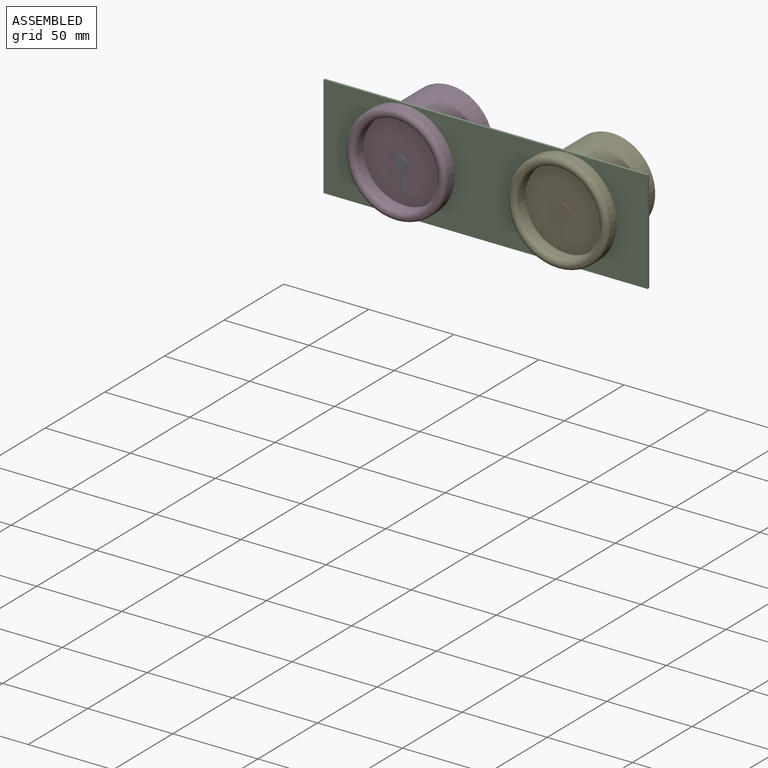
[diagram: assembled view]
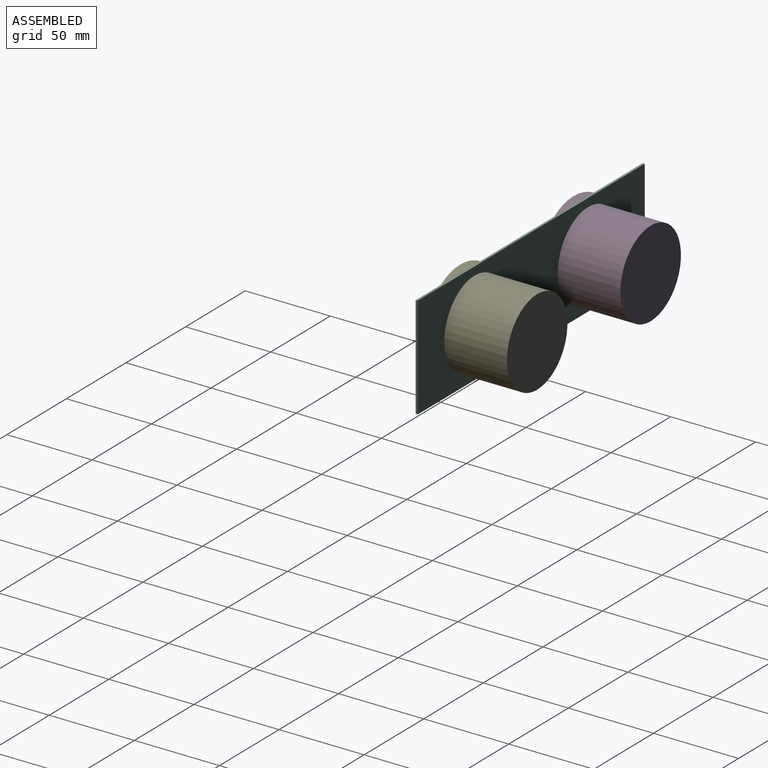
[diagram: assembled view, second angle]
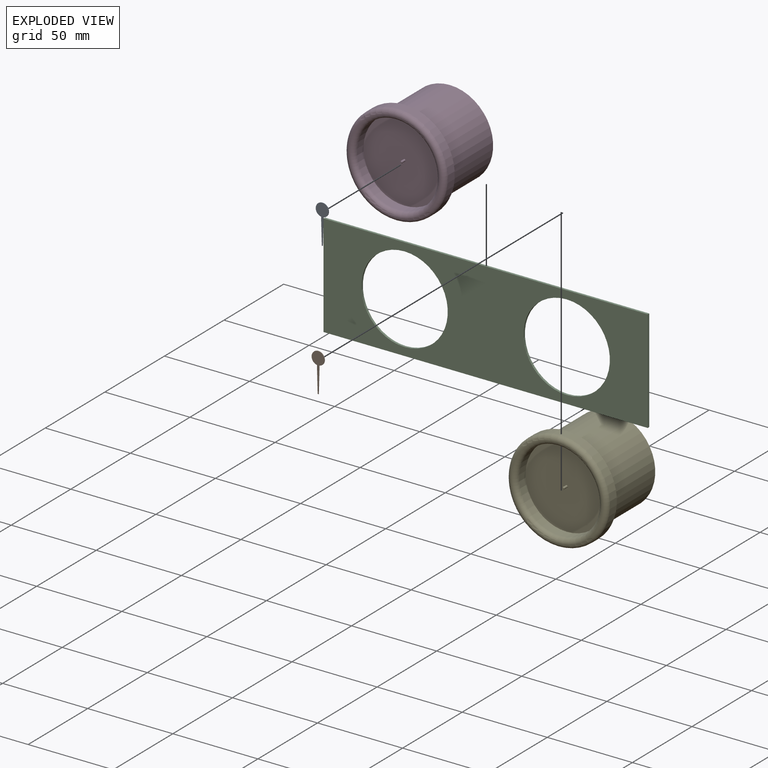
[diagram: exploded view]
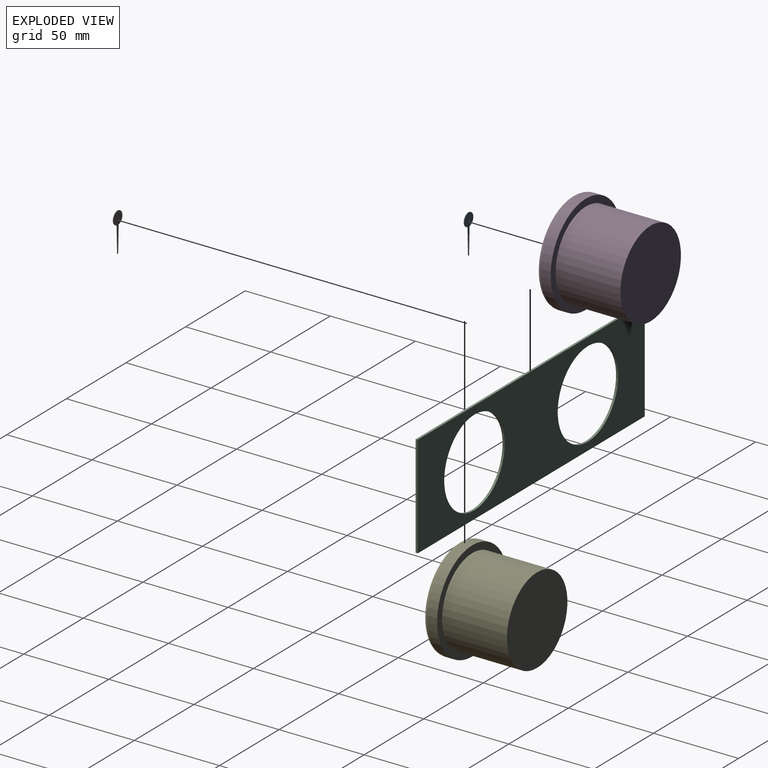
[diagram: exploded view, second angle]
ASSEMBLY  parts=5 mates=4
PART A: 6 faces, bbox 7.6x0.3x22.9 mm
  f0: cylinder r=3.81mm len=7.62mm, axis (0,1,0), area 7.2mm2, adj f1,f3,f4,f5
  f1: plane 15.3x0.41mm, normal (-1,0,-0.03), area 4.9mm2, adj f0,f2,f4,f5
  f2: plane 0.51x0.32mm, normal (0,0,-1), area 0.2mm2, adj f1,f3,f4,f5
  f3: plane 15.3x0.41mm, normal (1,0,-0.03), area 4.9mm2, adj f0,f2,f4,f5
  f4: plane 22.86x7.62mm, normal (0,-1,0), area 59.6mm2, adj f0,f1,f2,f3
  f5: plane 22.86x7.62mm, normal (0,1,0), area 59.6mm2, adj f0,f1,f2,f3
PART B: same geometry as A
PART C: 8 faces, bbox 190.5x1.3x60.3 mm
  f0: plane 60.33x1.27mm, normal (1,0,0), area 76.6mm2, adj f1,f5,f6,f7
  f1: plane 190.5x1.27mm, normal (0,0,1), area 241.9mm2, adj f0,f2,f6,f7
  f2: plane 60.33x1.27mm, normal (-1,0,0), area 76.6mm2, adj f1,f5,f6,f7
  f3: cylinder r=25.4mm len=50.8mm, axis (0,1,0), area 202.7mm2, adj f6,f7
  f4: cylinder r=25.4mm len=50.8mm, axis (0,1,0), area 202.7mm2, adj f6,f7
  f5: plane 190.5x1.27mm, normal (0,0,-1), area 241.9mm2, adj f0,f2,f6,f7
  f6: plane 190.5x60.33mm, normal (0,-1,0), area 7438.3mm2, adj f0,f1,f2,f3,f4,f5
  f7: plane 190.5x60.33mm, normal (0,1,0), area 7438.3mm2, adj f0,f1,f2,f3,f4,f5
PART D: 11 faces, bbox 63.9x46.4x63.9 mm
  f0: plane 48.26x48.26mm, normal (0,-1,0), area 1827.9mm2, adj f1,f4
  f1: cylinder r=0.64mm len=3.18mm, axis (0,1,0), area 12.7mm2, adj f0,f2
  f2: plane 1.27x1.27mm, normal (0,-1,0), area 1.3mm2, adj f1
  f3: cylinder r=29.53mm len=59.06mm, axis (0,1,0), area 1031.1mm2, adj f6,f9
  f4: cylinder r=24.13mm len=48.26mm, axis (0,1,0), area 842.6mm2, adj f0,f10
  f5: plane 53.66x53.66mm, normal (0,-1,0), area 0.4mm2, adj f9,f10
  f6: plane 59.06x59.06mm, normal (0,1,0), area 712.2mm2, adj f3,f8
  f7: plane 50.8x50.8mm, normal (0,1,0), area 2026.8mm2, adj f8
  f8: cylinder r=25.4mm len=50.8mm, axis (0,1,0), area 6080.5mm2, adj f6,f7
  f9: torus R=26.83mm, axis (0,-1,0), area 760mm2, adj f3,f5
  f10: torus R=26.83mm, axis (0,-1,0), area 668.5mm2, adj f4,f5
PART E: same geometry as D
PLACE A rot(axis=(0,0,1),180deg) t=(81.61,78.74,-57.04)mm
PLACE B t=(290.73,79.05,-57.04)mm
PLACE C t=(186.17,83.5,-36.93)mm
PLACE D t=(138.54,120.33,-36.93)mm
PLACE E t=(233.79,120.33,-36.93)mm
MATE fastened D.f8 <-> C.f3  axis (0,1,0) through (138.54,82.23,-36.93)mm
MATE fastened A.f0 <-> D.f1  axis (0,1,0) through (138.54,79.05,-36.93)mm
MATE fastened E.f8 <-> C.f4  axis (0,1,0) through (233.79,82.23,-36.93)mm
MATE fastened B.f0 <-> E.f1  axis (0,1,0) through (233.79,79.05,-36.93)mm
